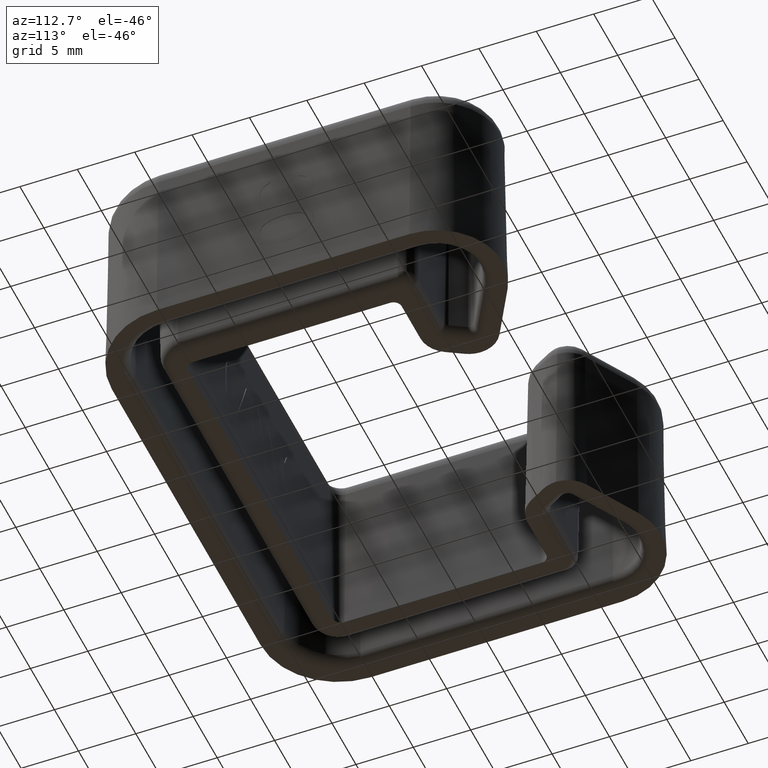
[diagram: clean part render]
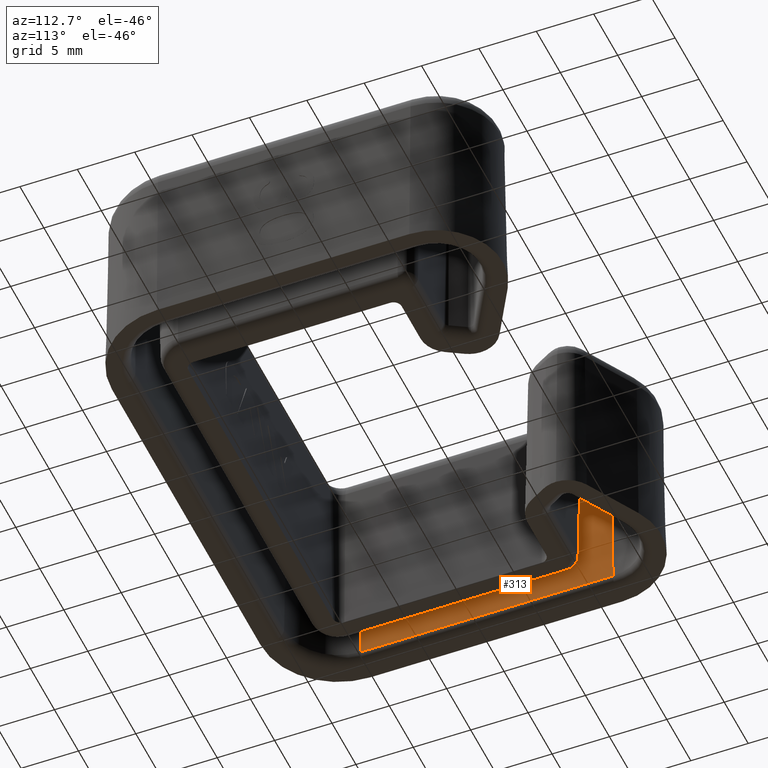
[diagram: same view with one face highlighted and labeled with its STEP entity id]
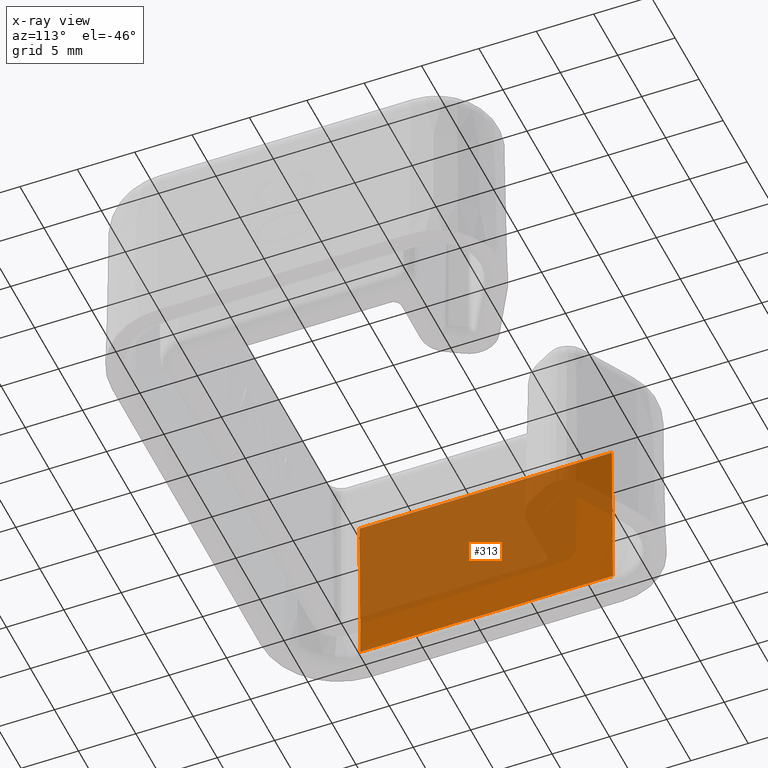
[diagram: x-ray of the same camera — body ghosted, the highlighted face saturated]
A machine part, auxiliary view. The second image highlights one B-rep face of the part: STEP entity #313.
The next image is the same camera in x-ray: the body ghosted, the highlighted face saturated — about 71% of this face is hidden behind the body in this view.
In plain terms, the highlighted planar face has unit normal (0.9998, 0, -0.0175).
Its self-contained STEP definition (entity closure, byte-faithful):
#313=ADVANCED_FACE('',(#672),#673,.T.);
#672=FACE_OUTER_BOUND('',#1085,.T.);
#673=PLANE('',#1086);
#1085=EDGE_LOOP('',(#2628,#2629,#2630,#2631));
#1086=AXIS2_PLACEMENT_3D('',#2632,#2633,#2634);
#2628=ORIENTED_EDGE('',*,*,#3206,.F.);
#2629=ORIENTED_EDGE('',*,*,#3163,.T.);
#2630=ORIENTED_EDGE('',*,*,#3204,.T.);
#2631=ORIENTED_EDGE('',*,*,#3207,.T.);
#2632=CARTESIAN_POINT('',(-19.9500000000031,1.94999999999717,15.0));
#2633=DIRECTION('',(0.999847695156391,4.44021572912475E-13,-0.0174524064372835));
#2634=DIRECTION('',(-0.0174524064372835,0.0,-0.999847695156391));
#3163=EDGE_CURVE('',#3838,#3846,#3848,.F.);
#3204=EDGE_CURVE('',#3846,#3908,#3909,.T.);
#3206=EDGE_CURVE('',#3838,#3911,#3912,.T.);
#3207=EDGE_CURVE('',#3908,#3911,#3913,.F.);
#3838=VERTEX_POINT('',#5539);
#3846=VERTEX_POINT('',#5548);
#3848=LINE('',#5550,#5551);
#3908=VERTEX_POINT('',#5633);
#3909=LINE('',#5634,#5635);
#3911=VERTEX_POINT('',#5637);
#3912=LINE('',#5638,#5639);
#3913=LINE('',#5640,#5641);
#5539=CARTESIAN_POINT('',(-20.1946755418868,4.499999999984,0.982547593562718));
#5548=CARTESIAN_POINT('',(-20.1946755418965,26.4999999999817,0.98254759356272));
#5550=CARTESIAN_POINT('',(-20.1946755418965,26.4999999999817,0.982547593562716));
#5551=VECTOR('',#6209,1000.0);
#5633=CARTESIAN_POINT('',(-19.950000000014,26.4999999999817,15.0));
#5634=CARTESIAN_POINT('',(-19.950000000014,26.4999999999817,15.0));
#5635=VECTOR('',#6286,1000.0);
#5637=CARTESIAN_POINT('',(-19.9500000000042,4.49999999998411,15.0));
#5638=CARTESIAN_POINT('',(-19.9500000000042,4.49999999998411,15.0));
#5639=VECTOR('',#6290,1000.0);
#5640=CARTESIAN_POINT('',(-19.9500000000031,1.94999999999717,15.0));
#5641=VECTOR('',#6291,1000.0);
#6209=DIRECTION('',(4.4408920985013E-13,-1.0,8.81121352985631E-31));
#6286=DIRECTION('',(0.0174524064372835,7.75744569756313E-15,0.999847695156391));
#6290=DIRECTION('',(0.0174524064372835,7.75042538471655E-15,0.999847695156391));
#6291=DIRECTION('',(-4.4408920985013E-13,1.0,0.0));